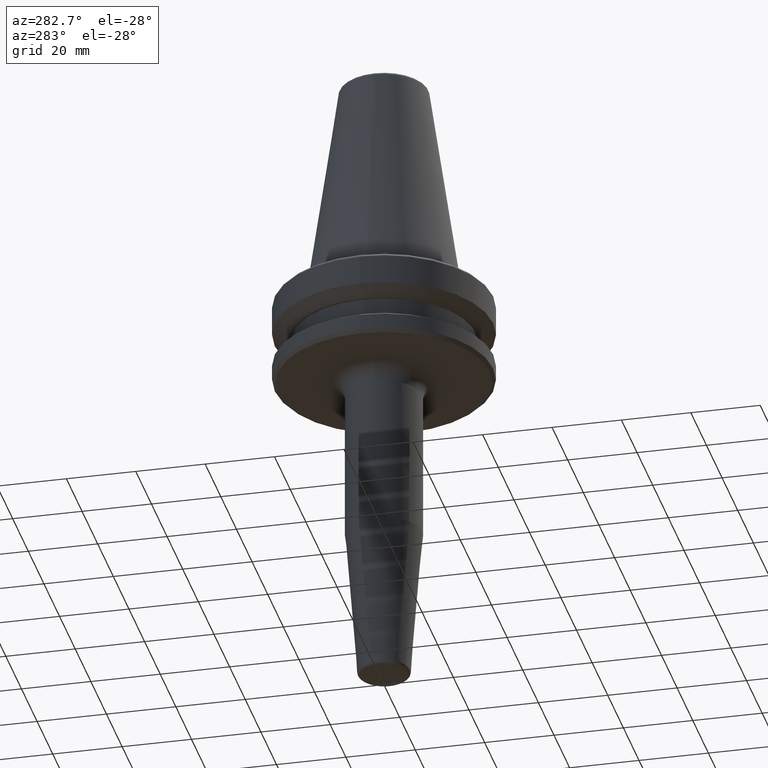
[diagram: clean part render]
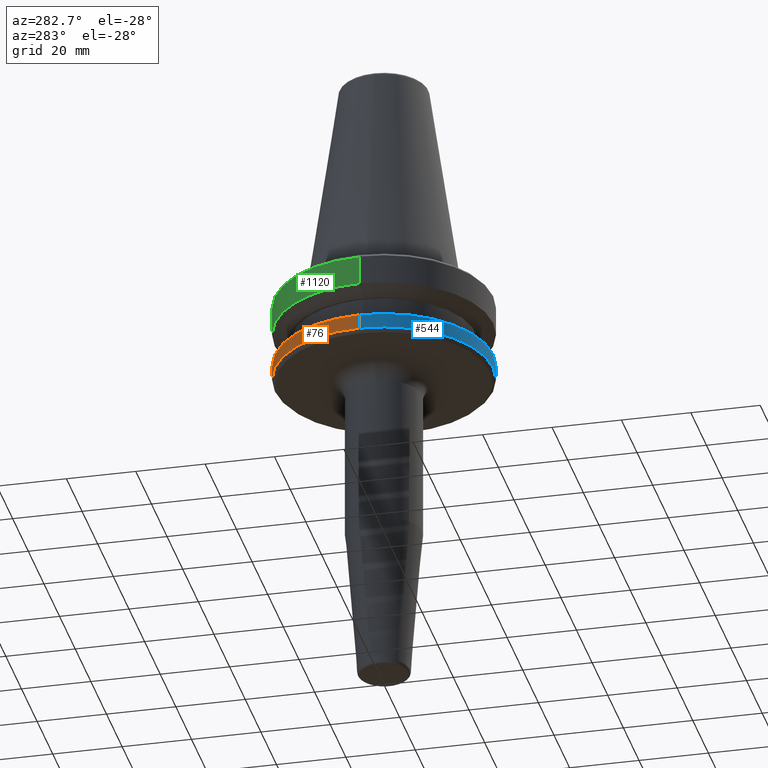
[diagram: same view with three faces highlighted in distinct colors, each labeled with its STEP entity id]
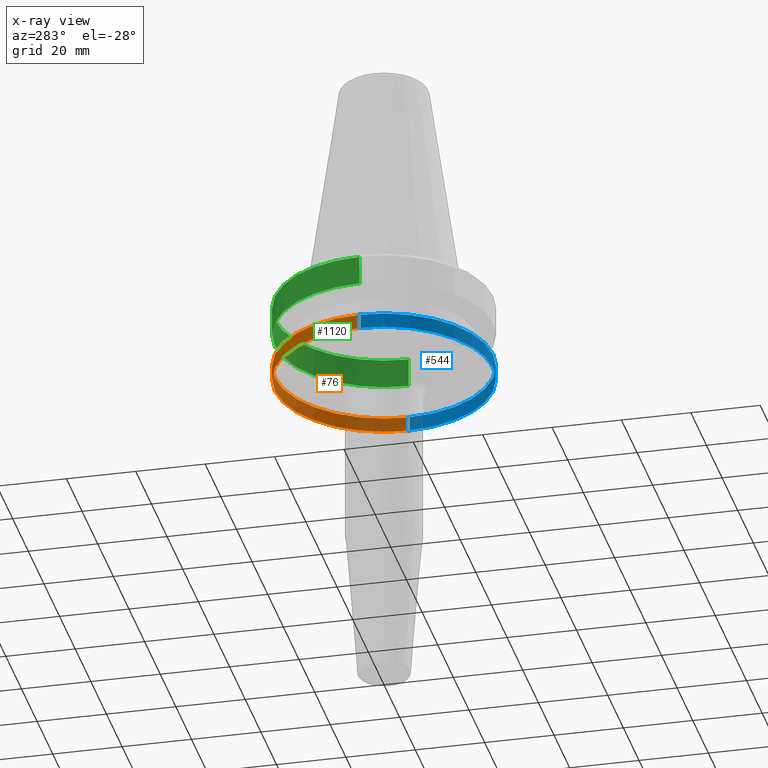
[diagram: x-ray of the same camera — body ghosted, the three highlighted faces saturated]
A machine part, auxiliary view with three faces highlighted in distinct colors.
The next image is the same camera in x-ray (body ghosted, the three faces saturated) — at least one of them is partly hidden behind the body in this view.
Their STEP definitions:

[orange] entity #76 — the highlighted cylindrical surface (partial cylindrical patch) has radius 31.5 mm, axis along (-0, -0, 1).
#58 = VERTEX_POINT ( 'NONE', #415 ) ;
#68 = VERTEX_POINT ( 'NONE', #188 ) ;
#76 = ADVANCED_FACE ( 'NONE', ( #299 ), #486, .T. ) ;
#87 = DIRECTION ( 'NONE',  ( 1.000000000000000000, 0.0000000000000000000, 0.0000000000000000000 ) ) ;
#159 = AXIS2_PLACEMENT_3D ( 'NONE', #1224, #1144, #757 ) ;
#188 = CARTESIAN_POINT ( 'NONE',  ( -31.50000000000000000, 3.857637417314162700E-015, -25.83431457505076900 ) ) ;
#297 = VECTOR ( 'NONE', #990, 1000.000000000000000 ) ;
#299 = FACE_OUTER_BOUND ( 'NONE', #379, .T. ) ;
#300 = CARTESIAN_POINT ( 'NONE',  ( 31.50000000000000000, 0.0000000000000000000, -25.83431457505076900 ) ) ;
#321 = CARTESIAN_POINT ( 'NONE',  ( -31.50000000000000000, 3.857637417314162700E-015, -21.60014200631675500 ) ) ;
#325 = LINE ( 'NONE', #657, #297 ) ;
#379 = EDGE_LOOP ( 'NONE', ( #905, #1162, #1190, #1110 ) ) ;
#396 = EDGE_CURVE ( 'NONE', #997, #68, #610, .T. ) ;
#415 = CARTESIAN_POINT ( 'NONE',  ( 31.50000000000000000, 0.0000000000000000000, -21.60014200631675500 ) ) ;
#442 = DIRECTION ( 'NONE',  ( -0.0000000000000000000, -0.0000000000000000000, 1.000000000000000000 ) ) ;
#454 = VECTOR ( 'NONE', #442, 1000.000000000000000 ) ;
#457 = EDGE_CURVE ( 'NONE', #68, #987, #325, .T. ) ;
#468 = CIRCLE ( 'NONE', #159, 31.50000000000000000 ) ;
#486 = CYLINDRICAL_SURFACE ( 'NONE', #1241, 31.50000000000000000 ) ;
#610 = CIRCLE ( 'NONE', #733, 31.50000000000000000 ) ;
#627 = CARTESIAN_POINT ( 'NONE',  ( 0.0000000000000000000, 0.0000000000000000000, 69.75694866325665100 ) ) ;
#636 = CARTESIAN_POINT ( 'NONE',  ( 31.50000000000000000, 0.0000000000000000000, 69.75694866325665100 ) ) ;
#657 = CARTESIAN_POINT ( 'NONE',  ( -31.50000000000000000, 3.857637417314162700E-015, 69.75694866325665100 ) ) ;
#733 = AXIS2_PLACEMENT_3D ( 'NONE', #1175, #995, #87 ) ;
#757 = DIRECTION ( 'NONE',  ( 1.000000000000000000, 0.0000000000000000000, 0.0000000000000000000 ) ) ;
#780 = EDGE_CURVE ( 'NONE', #997, #58, #1260, .T. ) ;
#905 = ORIENTED_EDGE ( 'NONE', *, *, #396, .T. ) ;
#975 = DIRECTION ( 'NONE',  ( -0.0000000000000000000, -0.0000000000000000000, 1.000000000000000000 ) ) ;
#987 = VERTEX_POINT ( 'NONE', #321 ) ;
#990 = DIRECTION ( 'NONE',  ( -0.0000000000000000000, -0.0000000000000000000, 1.000000000000000000 ) ) ;
#995 = DIRECTION ( 'NONE',  ( -0.0000000000000000000, -0.0000000000000000000, 1.000000000000000000 ) ) ;
#997 = VERTEX_POINT ( 'NONE', #300 ) ;
#1010 = DIRECTION ( 'NONE',  ( 1.000000000000000000, 0.0000000000000000000, 0.0000000000000000000 ) ) ;
#1104 = EDGE_CURVE ( 'NONE', #58, #987, #468, .T. ) ;
#1110 = ORIENTED_EDGE ( 'NONE', *, *, #780, .F. ) ;
#1144 = DIRECTION ( 'NONE',  ( -0.0000000000000000000, -0.0000000000000000000, 1.000000000000000000 ) ) ;
#1162 = ORIENTED_EDGE ( 'NONE', *, *, #457, .T. ) ;
#1175 = CARTESIAN_POINT ( 'NONE',  ( 0.0000000000000000000, 0.0000000000000000000, -25.83431457505076900 ) ) ;
#1190 = ORIENTED_EDGE ( 'NONE', *, *, #1104, .F. ) ;
#1224 = CARTESIAN_POINT ( 'NONE',  ( 0.0000000000000000000, 0.0000000000000000000, -21.60014200631675500 ) ) ;
#1241 = AXIS2_PLACEMENT_3D ( 'NONE', #627, #975, #1010 ) ;
#1260 = LINE ( 'NONE', #636, #454 ) ;

[blue] entity #544 — the highlighted cylindrical surface (partial cylindrical patch) has radius 31.5 mm, axis along (-0, -0, 1).
#36 = DIRECTION ( 'NONE',  ( 1.000000000000000000, 0.0000000000000000000, 0.0000000000000000000 ) ) ;
#58 = VERTEX_POINT ( 'NONE', #415 ) ;
#68 = VERTEX_POINT ( 'NONE', #188 ) ;
#102 = CARTESIAN_POINT ( 'NONE',  ( 0.0000000000000000000, 0.0000000000000000000, -25.83431457505076900 ) ) ;
#144 = EDGE_LOOP ( 'NONE', ( #1253, #475, #1159, #283 ) ) ;
#188 = CARTESIAN_POINT ( 'NONE',  ( -31.50000000000000000, 3.857637417314162700E-015, -25.83431457505076900 ) ) ;
#245 = DIRECTION ( 'NONE',  ( 1.000000000000000000, 0.0000000000000000000, 0.0000000000000000000 ) ) ;
#261 = DIRECTION ( 'NONE',  ( -0.0000000000000000000, -0.0000000000000000000, 1.000000000000000000 ) ) ;
#283 = ORIENTED_EDGE ( 'NONE', *, *, #885, .F. ) ;
#297 = VECTOR ( 'NONE', #990, 1000.000000000000000 ) ;
#300 = CARTESIAN_POINT ( 'NONE',  ( 31.50000000000000000, 0.0000000000000000000, -25.83431457505076900 ) ) ;
#321 = CARTESIAN_POINT ( 'NONE',  ( -31.50000000000000000, 3.857637417314162700E-015, -21.60014200631675500 ) ) ;
#325 = LINE ( 'NONE', #657, #297 ) ;
#375 = CARTESIAN_POINT ( 'NONE',  ( 0.0000000000000000000, 0.0000000000000000000, -21.60014200631675500 ) ) ;
#415 = CARTESIAN_POINT ( 'NONE',  ( 31.50000000000000000, 0.0000000000000000000, -21.60014200631675500 ) ) ;
#442 = DIRECTION ( 'NONE',  ( -0.0000000000000000000, -0.0000000000000000000, 1.000000000000000000 ) ) ;
#444 = CARTESIAN_POINT ( 'NONE',  ( 0.0000000000000000000, 0.0000000000000000000, 69.75694866325665100 ) ) ;
#454 = VECTOR ( 'NONE', #442, 1000.000000000000000 ) ;
#457 = EDGE_CURVE ( 'NONE', #68, #987, #325, .T. ) ;
#475 = ORIENTED_EDGE ( 'NONE', *, *, #1182, .T. ) ;
#544 = ADVANCED_FACE ( 'NONE', ( #969 ), #943, .T. ) ;
#546 = AXIS2_PLACEMENT_3D ( 'NONE', #102, #892, #36 ) ;
#621 = CIRCLE ( 'NONE', #1049, 31.50000000000000000 ) ;
#636 = CARTESIAN_POINT ( 'NONE',  ( 31.50000000000000000, 0.0000000000000000000, 69.75694866325665100 ) ) ;
#657 = CARTESIAN_POINT ( 'NONE',  ( -31.50000000000000000, 3.857637417314162700E-015, 69.75694866325665100 ) ) ;
#780 = EDGE_CURVE ( 'NONE', #997, #58, #1260, .T. ) ;
#885 = EDGE_CURVE ( 'NONE', #987, #58, #621, .T. ) ;
#892 = DIRECTION ( 'NONE',  ( -0.0000000000000000000, -0.0000000000000000000, 1.000000000000000000 ) ) ;
#926 = AXIS2_PLACEMENT_3D ( 'NONE', #444, #1222, #1019 ) ;
#943 = CYLINDRICAL_SURFACE ( 'NONE', #926, 31.50000000000000000 ) ;
#969 = FACE_OUTER_BOUND ( 'NONE', #144, .T. ) ;
#987 = VERTEX_POINT ( 'NONE', #321 ) ;
#990 = DIRECTION ( 'NONE',  ( -0.0000000000000000000, -0.0000000000000000000, 1.000000000000000000 ) ) ;
#997 = VERTEX_POINT ( 'NONE', #300 ) ;
#1019 = DIRECTION ( 'NONE',  ( 1.000000000000000000, 0.0000000000000000000, 0.0000000000000000000 ) ) ;
#1049 = AXIS2_PLACEMENT_3D ( 'NONE', #375, #261, #245 ) ;
#1159 = ORIENTED_EDGE ( 'NONE', *, *, #780, .T. ) ;
#1178 = CIRCLE ( 'NONE', #546, 31.50000000000000000 ) ;
#1182 = EDGE_CURVE ( 'NONE', #68, #997, #1178, .T. ) ;
#1222 = DIRECTION ( 'NONE',  ( -0.0000000000000000000, -0.0000000000000000000, 1.000000000000000000 ) ) ;
#1253 = ORIENTED_EDGE ( 'NONE', *, *, #457, .F. ) ;
#1260 = LINE ( 'NONE', #636, #454 ) ;

[green] entity #1120 — the highlighted cylindrical surface (partial cylindrical patch) has radius 31.5 mm, axis along (-0, -0, 1).
#6 = AXIS2_PLACEMENT_3D ( 'NONE', #1196, #619, #128 ) ;
#8 = EDGE_CURVE ( 'NONE', #249, #845, #785, .T. ) ;
#12 = DIRECTION ( 'NONE',  ( -0.0000000000000000000, -0.0000000000000000000, 1.000000000000000000 ) ) ;
#59 = DIRECTION ( 'NONE',  ( -0.0000000000000000000, -0.0000000000000000000, 1.000000000000000000 ) ) ;
#103 = ORIENTED_EDGE ( 'NONE', *, *, #8, .T. ) ;
#128 = DIRECTION ( 'NONE',  ( 1.000000000000000000, 0.0000000000000000000, 0.0000000000000000000 ) ) ;
#131 = CARTESIAN_POINT ( 'NONE',  ( -31.50000000000000000, 3.857637417314162700E-015, 69.75694866325665100 ) ) ;
#149 = VECTOR ( 'NONE', #195, 1000.000000000000000 ) ;
#170 = CARTESIAN_POINT ( 'NONE',  ( 31.50000000000000000, 0.0000000000000000000, -11.59985799368323700 ) ) ;
#184 = CYLINDRICAL_SURFACE ( 'NONE', #356, 31.50000000000000000 ) ;
#195 = DIRECTION ( 'NONE',  ( -0.0000000000000000000, -0.0000000000000000000, 1.000000000000000000 ) ) ;
#223 = VERTEX_POINT ( 'NONE', #170 ) ;
#249 = VERTEX_POINT ( 'NONE', #313 ) ;
#313 = CARTESIAN_POINT ( 'NONE',  ( -31.50000000000000000, 3.857637417314162700E-015, -11.59985799368323700 ) ) ;
#356 = AXIS2_PLACEMENT_3D ( 'NONE', #467, #843, #1239 ) ;
#361 = DIRECTION ( 'NONE',  ( 1.000000000000000000, 0.0000000000000000000, 0.0000000000000000000 ) ) ;
#409 = CARTESIAN_POINT ( 'NONE',  ( -31.49999999999999300, 3.857637417314161900E-015, -3.165685424949243700 ) ) ;
#410 = LINE ( 'NONE', #963, #149 ) ;
#467 = CARTESIAN_POINT ( 'NONE',  ( 0.0000000000000000000, 0.0000000000000000000, 69.75694866325665100 ) ) ;
#472 = ORIENTED_EDGE ( 'NONE', *, *, #959, .F. ) ;
#485 = EDGE_LOOP ( 'NONE', ( #863, #103, #472, #1147 ) ) ;
#514 = VECTOR ( 'NONE', #12, 1000.000000000000000 ) ;
#619 = DIRECTION ( 'NONE',  ( -0.0000000000000000000, -0.0000000000000000000, 1.000000000000000000 ) ) ;
#726 = CARTESIAN_POINT ( 'NONE',  ( 31.49999999999999300, 0.0000000000000000000, -3.165685424949243700 ) ) ;
#785 = LINE ( 'NONE', #131, #514 ) ;
#821 = CIRCLE ( 'NONE', #6, 31.49999999999999300 ) ;
#843 = DIRECTION ( 'NONE',  ( -0.0000000000000000000, -0.0000000000000000000, 1.000000000000000000 ) ) ;
#845 = VERTEX_POINT ( 'NONE', #409 ) ;
#863 = ORIENTED_EDGE ( 'NONE', *, *, #1082, .T. ) ;
#959 = EDGE_CURVE ( 'NONE', #1277, #845, #821, .T. ) ;
#963 = CARTESIAN_POINT ( 'NONE',  ( 31.50000000000000000, 0.0000000000000000000, 69.75694866325665100 ) ) ;
#1007 = CIRCLE ( 'NONE', #1219, 31.50000000000000000 ) ;
#1082 = EDGE_CURVE ( 'NONE', #223, #249, #1007, .T. ) ;
#1120 = ADVANCED_FACE ( 'NONE', ( #1207 ), #184, .T. ) ;
#1147 = ORIENTED_EDGE ( 'NONE', *, *, #1152, .F. ) ;
#1152 = EDGE_CURVE ( 'NONE', #223, #1277, #410, .T. ) ;
#1196 = CARTESIAN_POINT ( 'NONE',  ( 0.0000000000000000000, 0.0000000000000000000, -3.165685424949243700 ) ) ;
#1207 = FACE_OUTER_BOUND ( 'NONE', #485, .T. ) ;
#1219 = AXIS2_PLACEMENT_3D ( 'NONE', #1227, #59, #361 ) ;
#1227 = CARTESIAN_POINT ( 'NONE',  ( 0.0000000000000000000, 0.0000000000000000000, -11.59985799368323700 ) ) ;
#1239 = DIRECTION ( 'NONE',  ( 1.000000000000000000, 0.0000000000000000000, 0.0000000000000000000 ) ) ;
#1277 = VERTEX_POINT ( 'NONE', #726 ) ;